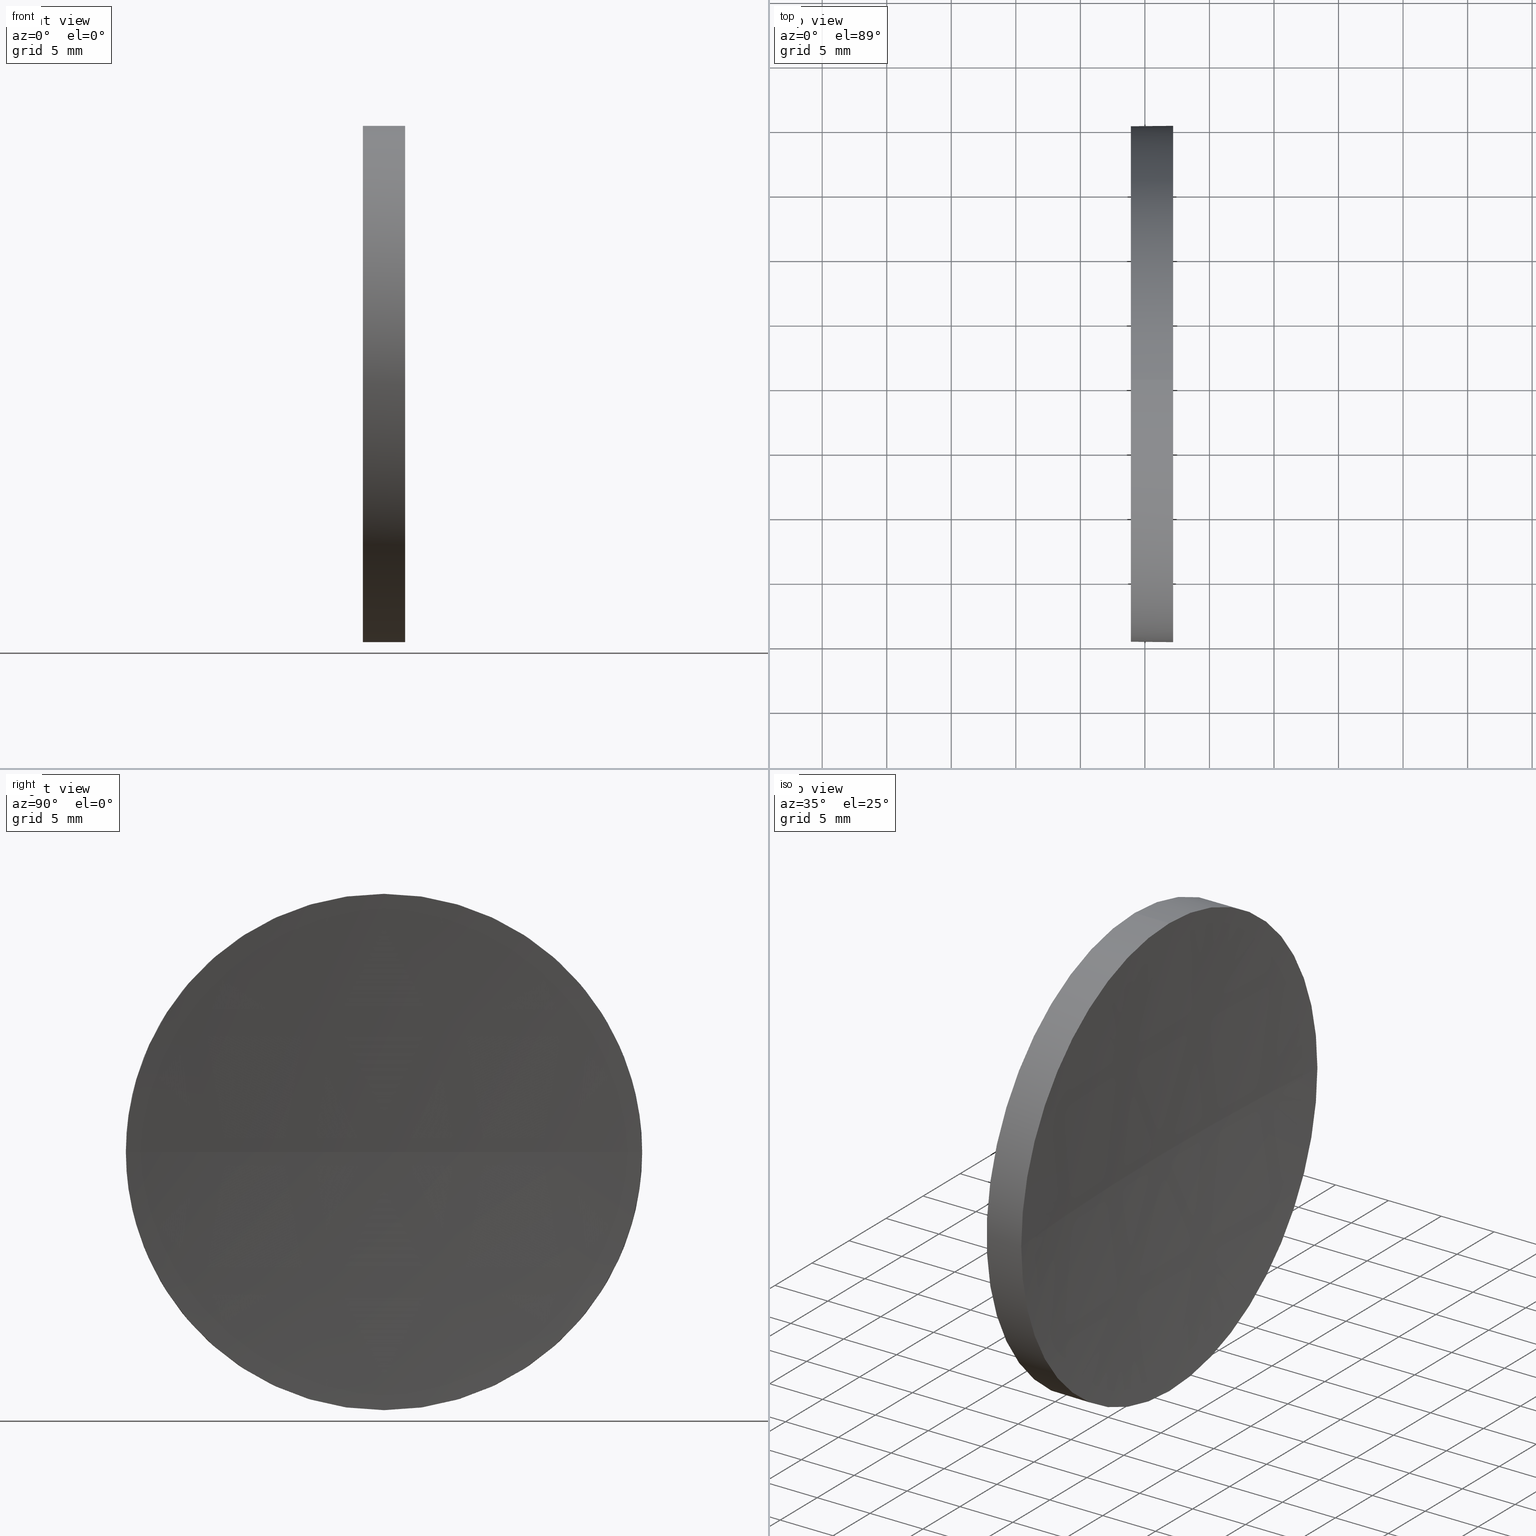
[diagram: canonical four-view strip — front | top / right | iso, engineering-drawing reading convention]
A machine part, canonical four-view strip (front | top / right | iso — engineering-drawing reading convention). The complete STEP part file that produces these views, byte-faithful:
ISO-10303-21;
HEADER;
FILE_DESCRIPTION (( 'STEP AP214' ),
    '1' );
FILE_NAME ('120052.STEP',
    '2019-06-18T01:13:12',
    ( '' ),
    ( '' ),
    'SwSTEP 2.0',
    'SolidWorks 2016',
    '' );
FILE_SCHEMA (( 'AUTOMOTIVE_DESIGN' ));
ENDSEC;

DATA;
#1 = ADVANCED_FACE ( 'NONE', ( #2 ), #137, .T. ) ;
#2 = FACE_OUTER_BOUND ( 'NONE', #156, .T. ) ;
#3 = ADVANCED_FACE ( 'NONE', ( #120 ), #94, .F. ) ;
#4 = FILL_AREA_STYLE_COLOUR ( '', #76 ) ;
#5 = EDGE_LOOP ( 'NONE', ( #26, #124, #7, #47 ) ) ;
#6 = EDGE_LOOP ( 'NONE', ( #168, #21, #88, #176, #143 ) ) ;
#7 = ORIENTED_EDGE ( 'NONE', *, *, #104, .F. ) ;
#8 = DIRECTION ( 'NONE',  ( -1.000000000000000000, -0.0000000000000000000, -0.0000000000000000000 ) ) ;
#9 = AXIS2_PLACEMENT_3D ( 'NONE', #80, #34, #180 ) ;
#10 =( NAMED_UNIT ( * ) SI_UNIT ( $, .STERADIAN. ) SOLID_ANGLE_UNIT ( ) );
#11 = CARTESIAN_POINT ( 'NONE',  ( 117.1877506669351400, 65.15563045701519200, -20.00000000000000400 ) ) ;
#12 = MANIFOLD_SOLID_BREP ( '��ת1', #116 ) ;
#13 = LINE ( 'NONE', #184, #175 ) ;
#14 = FACE_OUTER_BOUND ( 'NONE', #5, .T. ) ;
#15 = ORIENTED_EDGE ( 'NONE', *, *, #104, .T. ) ;
#16 = CARTESIAN_POINT ( 'NONE',  ( 374.5919316741596400, 65.15563045701524900, 0.0000000000000000000 ) ) ;
#17 = AXIS2_PLACEMENT_3D ( 'NONE', #35, #71, #172 ) ;
#18 = CARTESIAN_POINT ( 'NONE',  ( 374.5919316741596400, 65.15563045701524900, 0.0000000000000000000 ) ) ;
#19 = FACE_OUTER_BOUND ( 'NONE', #60, .T. ) ;
#20 = CARTESIAN_POINT ( 'NONE',  ( 113.9119316741596200, 65.15563045701519200, 0.0000000000000000000 ) ) ;
#21 = ORIENTED_EDGE ( 'NONE', *, *, #98, .T. ) ;
#22 = PRODUCT_RELATED_PRODUCT_CATEGORY ( 'part', '', ( #160 ) ) ;
#23 =( LENGTH_UNIT ( ) NAMED_UNIT ( * ) SI_UNIT ( .MILLI., .METRE. ) );
#24 =( NAMED_UNIT ( * ) PLANE_ANGLE_UNIT ( ) SI_UNIT ( $, .RADIAN. ) );
#25 = CIRCLE ( 'NONE', #38, 20.00000000000000400 ) ;
#26 = ORIENTED_EDGE ( 'NONE', *, *, #51, .F. ) ;
#27 = CARTESIAN_POINT ( 'NONE',  ( 117.1877506669351400, 65.15563045701519200, 0.0000000000000000000 ) ) ;
#28 = PRESENTATION_STYLE_ASSIGNMENT (( #159 ) ) ;
#29 = CARTESIAN_POINT ( 'NONE',  ( 117.1877506669351400, 65.15563045701519200, 20.00000000000000400 ) ) ;
#30 = CARTESIAN_POINT ( 'NONE',  ( 117.1877506669351400, 65.15563045701519200, 0.0000000000000000000 ) ) ;
#31 = SURFACE_SIDE_STYLE ('',( #113 ) ) ;
#32 = SURFACE_STYLE_FILL_AREA ( #78 ) ;
#33 = EDGE_CURVE ( 'NONE', #164, #170, #87, .T. ) ;
#34 = DIRECTION ( 'NONE',  ( 0.0000000000000000000, 0.0000000000000000000, 1.000000000000000000 ) ) ;
#35 = CARTESIAN_POINT ( 'NONE',  ( 374.5919316741596400, 65.15563045701524900, 0.0000000000000000000 ) ) ;
#36 = PRESENTATION_STYLE_ASSIGNMENT (( #68 ) ) ;
#37 = DIRECTION ( 'NONE',  ( -1.000000000000000000, -0.0000000000000000000, -0.0000000000000000000 ) ) ;
#38 = AXIS2_PLACEMENT_3D ( 'NONE', #30, #62, #118 ) ;
#39 = DIRECTION ( 'NONE',  ( 0.0000000000000000000, 0.0000000000000000000, 1.000000000000000000 ) ) ;
#40 = DIRECTION ( 'NONE',  ( -1.000000000000000000, -0.0000000000000000000, -0.0000000000000000000 ) ) ;
#41 = EDGE_CURVE ( 'NONE', #101, #164, #129, .T. ) ;
#42 = ORIENTED_EDGE ( 'NONE', *, *, #133, .F. ) ;
#43 = DIRECTION ( 'NONE',  ( 0.0000000000000000000, 0.0000000000000000000, 1.000000000000000000 ) ) ;
#44 = SPHERICAL_SURFACE ( 'NONE', #65, 258.1799999999999500 ) ;
#45 = ORIENTED_EDGE ( 'NONE', *, *, #93, .T. ) ;
#46 =( LENGTH_UNIT ( ) NAMED_UNIT ( * ) SI_UNIT ( .MILLI., .METRE. ) );
#47 = ORIENTED_EDGE ( 'NONE', *, *, #98, .F. ) ;
#48 = SURFACE_SIDE_STYLE ('',( #32 ) ) ;
#49 = SPHERICAL_SURFACE ( 'NONE', #155, 258.1799999999999500 ) ;
#50 = APPLICATION_CONTEXT ( 'automotive_design' ) ;
#51 = EDGE_CURVE ( 'NONE', #130, #140, #100, .T. ) ;
#52 = UNCERTAINTY_MEASURE_WITH_UNIT (LENGTH_MEASURE( 1.000000000000000100E-005 ), #46, 'distance_accuracy_value', 'NONE');
#53 = DIRECTION ( 'NONE',  ( 0.0000000000000000000, 0.0000000000000000000, 1.000000000000000000 ) ) ;
#54 = ORIENTED_EDGE ( 'NONE', *, *, #110, .F. ) ;
#55 = CARTESIAN_POINT ( 'NONE',  ( 105.6218371238301200, 65.15563045701519200, 0.0000000000000000000 ) ) ;
#56 = CIRCLE ( 'NONE', #111, 258.1799999999999500 ) ;
#57 = ORIENTED_EDGE ( 'NONE', *, *, #91, .T. ) ;
#58 = DIRECTION ( 'NONE',  ( 0.0000000000000000000, 0.0000000000000000000, 1.000000000000000000 ) ) ;
#59 = ADVANCED_FACE ( 'NONE', ( #14 ), #44, .F. ) ;
#60 = EDGE_LOOP ( 'NONE', ( #54, #84, #42, #15 ) ) ;
#61 = AXIS2_PLACEMENT_3D ( 'NONE', #169, #8, #157 ) ;
#62 = DIRECTION ( 'NONE',  ( -1.000000000000000000, -0.0000000000000000000, -0.0000000000000000000 ) ) ;
#63 = CIRCLE ( 'NONE', #149, 20.00000000000000400 ) ;
#64 = DIRECTION ( 'NONE',  ( -1.000000000000000000, -0.0000000000000000000, -0.0000000000000000000 ) ) ;
#65 = AXIS2_PLACEMENT_3D ( 'NONE', #103, #131, #114 ) ;
#66 = VECTOR ( 'NONE', #64, 1000.000000000000000 ) ;
#67 = DIRECTION ( 'NONE',  ( -1.000000000000000000, -0.0000000000000000000, -0.0000000000000000000 ) ) ;
#68 = SURFACE_STYLE_USAGE ( .BOTH. , #31 ) ;
#69 = PRODUCT_DEFINITION_CONTEXT ( 'detailed design', #144, 'design' ) ;
#70 = CARTESIAN_POINT ( 'NONE',  ( 113.9119316741596200, 65.15563045701519200, -20.00000000000000400 ) ) ;
#71 = DIRECTION ( 'NONE',  ( 0.0000000000000000000, -1.224646799147353200E-016, 1.000000000000000000 ) ) ;
#72 = EDGE_LOOP ( 'NONE', ( #95, #125 ) ) ;
#73 = CARTESIAN_POINT ( 'NONE',  ( 117.1877506669351600, 85.15563045701502200, 2.449293598294677700E-015 ) ) ;
#74 = ADVANCED_FACE ( 'NONE', ( #142 ), #92, .T. ) ;
#75 =( NAMED_UNIT ( * ) SI_UNIT ( $, .STERADIAN. ) SOLID_ANGLE_UNIT ( ) );
#76 = COLOUR_RGB ( '',1.000000000000000000, 1.000000000000000000, 1.000000000000000000 ) ;
#77 = PRODUCT_DEFINITION ( 'δ֪', '', #173, #69 ) ;
#78 = FILL_AREA_STYLE ('',( #181 ) ) ;
#79 =( LENGTH_UNIT ( ) NAMED_UNIT ( * ) SI_UNIT ( .MILLI., .METRE. ) );
#80 = CARTESIAN_POINT ( 'NONE',  ( 0.0000000000000000000, 0.0000000000000000000, 0.0000000000000000000 ) ) ;
#81 = DIRECTION ( 'NONE',  ( -1.000000000000000000, -0.0000000000000000000, -0.0000000000000000000 ) ) ;
#82 = ORIENTED_EDGE ( 'NONE', *, *, #41, .F. ) ;
#83 = DIRECTION ( 'NONE',  ( 0.0000000000000000000, 0.0000000000000000000, 1.000000000000000000 ) ) ;
#84 = ORIENTED_EDGE ( 'NONE', *, *, #91, .F. ) ;
#85 = CARTESIAN_POINT ( 'NONE',  ( 105.6218371238301200, 65.15563045701519200, 0.0000000000000000000 ) ) ;
#86 = CIRCLE ( 'NONE', #17, 258.1799999999999500 ) ;
#87 = CIRCLE ( 'NONE', #186, 20.00000000000000400 ) ;
#88 = ORIENTED_EDGE ( 'NONE', *, *, #133, .T. ) ;
#89 = ORIENTED_EDGE ( 'NONE', *, *, #51, .T. ) ;
#90 = UNCERTAINTY_MEASURE_WITH_UNIT (LENGTH_MEASURE( 1.000000000000000100E-005 ), #79, 'distance_accuracy_value', 'NONE');
#91 = EDGE_CURVE ( 'NONE', #101, #130, #63, .T. ) ;
#92 = CYLINDRICAL_SURFACE ( 'NONE', #105, 20.00000000000000400 ) ;
#93 = EDGE_CURVE ( 'NONE', #140, #170, #13, .T. ) ;
#94 = PLANE ( 'NONE',  #106 ) ;
#95 = ORIENTED_EDGE ( 'NONE', *, *, #33, .T. ) ;
#96 = DIRECTION ( 'NONE',  ( 0.0000000000000000000, 0.0000000000000000000, 1.000000000000000000 ) ) ;
#97 = DIRECTION ( 'NONE',  ( 0.0000000000000000000, -1.000000000000000000, 0.0000000000000000000 ) ) ;
#98 = EDGE_CURVE ( 'NONE', #140, #109, #166, .T. ) ;
#99 =( NAMED_UNIT ( * ) PLANE_ANGLE_UNIT ( ) SI_UNIT ( $, .RADIAN. ) );
#100 = CIRCLE ( 'NONE', #112, 20.00000000000000400 ) ;
#101 = VERTEX_POINT ( 'NONE', #29 ) ;
#102 = PRODUCT_CONTEXT ( 'NONE', #50, 'mechanical' ) ;
#103 = CARTESIAN_POINT ( 'NONE',  ( 374.5919316741596400, 65.15563045701524900, 0.0000000000000000000 ) ) ;
#104 = EDGE_CURVE ( 'NONE', #109, #183, #56, .T. ) ;
#105 = AXIS2_PLACEMENT_3D ( 'NONE', #55, #37, #83 ) ;
#106 = AXIS2_PLACEMENT_3D ( 'NONE', #20, #154, #122 ) ;
#107 = CARTESIAN_POINT ( 'NONE',  ( 113.9119316741596200, 65.15563045701519200, 0.0000000000000000000 ) ) ;
#108 = FILL_AREA_STYLE ('',( #4 ) ) ;
#109 = VERTEX_POINT ( 'NONE', #132 ) ;
#110 = EDGE_CURVE ( 'NONE', #130, #183, #86, .T. ) ;
#111 = AXIS2_PLACEMENT_3D ( 'NONE', #18, #182, #162 ) ;
#112 = AXIS2_PLACEMENT_3D ( 'NONE', #115, #67, #53 ) ;
#113 = SURFACE_STYLE_FILL_AREA ( #108 ) ;
#114 = DIRECTION ( 'NONE',  ( 0.0000000000000000000, -1.000000000000000000, 0.0000000000000000000 ) ) ;
#115 = CARTESIAN_POINT ( 'NONE',  ( 117.1877506669351400, 65.15563045701519200, 0.0000000000000000000 ) ) ;
#116 = CLOSED_SHELL ( 'NONE', ( #1, #59, #139, #74, #3 ) ) ;
#117 = DIRECTION ( 'NONE',  ( -1.000000000000000000, -0.0000000000000000000, -0.0000000000000000000 ) ) ;
#118 = DIRECTION ( 'NONE',  ( 0.0000000000000000000, 0.0000000000000000000, 1.000000000000000000 ) ) ;
#119 = DIRECTION ( 'NONE',  ( -1.000000000000000000, -0.0000000000000000000, -0.0000000000000000000 ) ) ;
#120 = FACE_OUTER_BOUND ( 'NONE', #72, .T. ) ;
#121 = STYLED_ITEM ( 'NONE', ( #28 ), #141 ) ;
#122 = DIRECTION ( 'NONE',  ( 0.0000000000000000000, 0.0000000000000000000, -1.000000000000000000 ) ) ;
#123 = UNCERTAINTY_MEASURE_WITH_UNIT (LENGTH_MEASURE( 1.000000000000000100E-005 ), #23, 'distance_accuracy_value', 'NONE');
#124 = ORIENTED_EDGE ( 'NONE', *, *, #110, .T. ) ;
#125 = ORIENTED_EDGE ( 'NONE', *, *, #163, .T. ) ;
#126 = APPLICATION_PROTOCOL_DEFINITION ( 'draft international standard', 'automotive_design', 1998, #50 ) ;
#127 = CARTESIAN_POINT ( 'NONE',  ( 116.4119316741597000, 65.15563045701523500, 0.0000000000000000000 ) ) ;
#128 = CIRCLE ( 'NONE', #61, 20.00000000000000400 ) ;
#129 = LINE ( 'NONE', #152, #66 ) ;
#130 = VERTEX_POINT ( 'NONE', #73 ) ;
#131 = DIRECTION ( 'NONE',  ( 0.0000000000000000000, 0.0000000000000000000, 1.000000000000000000 ) ) ;
#132 = CARTESIAN_POINT ( 'NONE',  ( 117.1877506669351600, 45.15563045701542700, 0.0000000000000000000 ) ) ;
#133 = EDGE_CURVE ( 'NONE', #109, #101, #25, .T. ) ;
#134 = PRESENTATION_LAYER_ASSIGNMENT (  '', '', ( #121 ) ) ;
#135 = SHAPE_DEFINITION_REPRESENTATION ( #138, #141 ) ;
#136 = STYLED_ITEM ( 'NONE', ( #36 ), #12 ) ;
#137 = CYLINDRICAL_SURFACE ( 'NONE', #171, 20.00000000000000400 ) ;
#138 = PRODUCT_DEFINITION_SHAPE ( 'NONE', 'NONE',  #77 ) ;
#139 = ADVANCED_FACE ( 'NONE', ( #19 ), #49, .F. ) ;
#140 = VERTEX_POINT ( 'NONE', #11 ) ;
#141 = ADVANCED_BREP_SHAPE_REPRESENTATION ( '120052', ( #12, #9 ), #165 ) ;
#142 = FACE_OUTER_BOUND ( 'NONE', #6, .T. ) ;
#143 = ORIENTED_EDGE ( 'NONE', *, *, #163, .F. ) ;
#144 = APPLICATION_CONTEXT ( 'automotive_design' ) ;
#145 =( NAMED_UNIT ( * ) SI_UNIT ( $, .STERADIAN. ) SOLID_ANGLE_UNIT ( ) );
#146 = PRESENTATION_LAYER_ASSIGNMENT (  '', '', ( #136 ) ) ;
#147 = DIRECTION ( 'NONE',  ( -1.000000000000000000, -0.0000000000000000000, -0.0000000000000000000 ) ) ;
#148 = COLOUR_RGB ( '',1.000000000000000000, 1.000000000000000000, 1.000000000000000000 ) ;
#149 = AXIS2_PLACEMENT_3D ( 'NONE', #161, #117, #174 ) ;
#150 = ORIENTED_EDGE ( 'NONE', *, *, #33, .F. ) ;
#151 = AXIS2_PLACEMENT_3D ( 'NONE', #27, #147, #39 ) ;
#152 = CARTESIAN_POINT ( 'NONE',  ( 105.6218371238301200, 65.15563045701519200, 20.00000000000000400 ) ) ;
#153 =( GEOMETRIC_REPRESENTATION_CONTEXT ( 3 ) GLOBAL_UNCERTAINTY_ASSIGNED_CONTEXT ( ( #52 ) ) GLOBAL_UNIT_ASSIGNED_CONTEXT ( ( #46, #167, #75 ) ) REPRESENTATION_CONTEXT ( 'NONE', 'WORKASPACE' ) );
#154 = DIRECTION ( 'NONE',  ( 1.000000000000000000, 0.0000000000000000000, 0.0000000000000000000 ) ) ;
#155 = AXIS2_PLACEMENT_3D ( 'NONE', #16, #96, #97 ) ;
#156 = EDGE_LOOP ( 'NONE', ( #89, #45, #150, #82, #57 ) ) ;
#157 = DIRECTION ( 'NONE',  ( 0.0000000000000000000, 0.0000000000000000000, 1.000000000000000000 ) ) ;
#158 = CARTESIAN_POINT ( 'NONE',  ( 113.9119316741596200, 65.15563045701519200, 20.00000000000000400 ) ) ;
#159 = SURFACE_STYLE_USAGE ( .BOTH. , #48 ) ;
#160 = PRODUCT ( '120052', '120052', '', ( #102 ) ) ;
#161 = CARTESIAN_POINT ( 'NONE',  ( 117.1877506669351400, 65.15563045701519200, 0.0000000000000000000 ) ) ;
#162 = DIRECTION ( 'NONE',  ( -1.000000000000000000, 0.0000000000000000000, 0.0000000000000000000 ) ) ;
#163 = EDGE_CURVE ( 'NONE', #170, #164, #128, .T. ) ;
#164 = VERTEX_POINT ( 'NONE', #158 ) ;
#165 =( GEOMETRIC_REPRESENTATION_CONTEXT ( 3 ) GLOBAL_UNCERTAINTY_ASSIGNED_CONTEXT ( ( #123 ) ) GLOBAL_UNIT_ASSIGNED_CONTEXT ( ( #23, #99, #145 ) ) REPRESENTATION_CONTEXT ( 'NONE', 'WORKASPACE' ) );
#166 = CIRCLE ( 'NONE', #151, 20.00000000000000400 ) ;
#167 =( NAMED_UNIT ( * ) PLANE_ANGLE_UNIT ( ) SI_UNIT ( $, .RADIAN. ) );
#168 = ORIENTED_EDGE ( 'NONE', *, *, #93, .F. ) ;
#169 = CARTESIAN_POINT ( 'NONE',  ( 113.9119316741596200, 65.15563045701519200, 0.0000000000000000000 ) ) ;
#170 = VERTEX_POINT ( 'NONE', #70 ) ;
#171 = AXIS2_PLACEMENT_3D ( 'NONE', #85, #40, #58 ) ;
#172 = DIRECTION ( 'NONE',  ( 0.0000000000000000000, -1.000000000000000000, -1.224646799147353200E-016 ) ) ;
#173 = PRODUCT_DEFINITION_FORMATION_WITH_SPECIFIED_SOURCE ( '�κ�', '', #160, .NOT_KNOWN. ) ;
#174 = DIRECTION ( 'NONE',  ( 0.0000000000000000000, 0.0000000000000000000, 1.000000000000000000 ) ) ;
#175 = VECTOR ( 'NONE', #81, 1000.000000000000000 ) ;
#176 = ORIENTED_EDGE ( 'NONE', *, *, #41, .T. ) ;
#177 = MECHANICAL_DESIGN_GEOMETRIC_PRESENTATION_REPRESENTATION (  '', ( #121 ), #185 ) ;
#178 = MECHANICAL_DESIGN_GEOMETRIC_PRESENTATION_REPRESENTATION (  '', ( #136 ), #153 ) ;
#179 = APPLICATION_PROTOCOL_DEFINITION ( 'draft international standard', 'automotive_design', 1998, #144 ) ;
#180 = DIRECTION ( 'NONE',  ( 1.000000000000000000, 0.0000000000000000000, 0.0000000000000000000 ) ) ;
#181 = FILL_AREA_STYLE_COLOUR ( '', #148 ) ;
#182 = DIRECTION ( 'NONE',  ( 0.0000000000000000000, 0.0000000000000000000, -1.000000000000000000 ) ) ;
#183 = VERTEX_POINT ( 'NONE', #127 ) ;
#184 = CARTESIAN_POINT ( 'NONE',  ( 105.6218371238301200, 65.15563045701519200, -20.00000000000000400 ) ) ;
#185 =( GEOMETRIC_REPRESENTATION_CONTEXT ( 3 ) GLOBAL_UNCERTAINTY_ASSIGNED_CONTEXT ( ( #90 ) ) GLOBAL_UNIT_ASSIGNED_CONTEXT ( ( #79, #24, #10 ) ) REPRESENTATION_CONTEXT ( 'NONE', 'WORKASPACE' ) );
#186 = AXIS2_PLACEMENT_3D ( 'NONE', #107, #119, #43 ) ;
ENDSEC;
END-ISO-10303-21;
